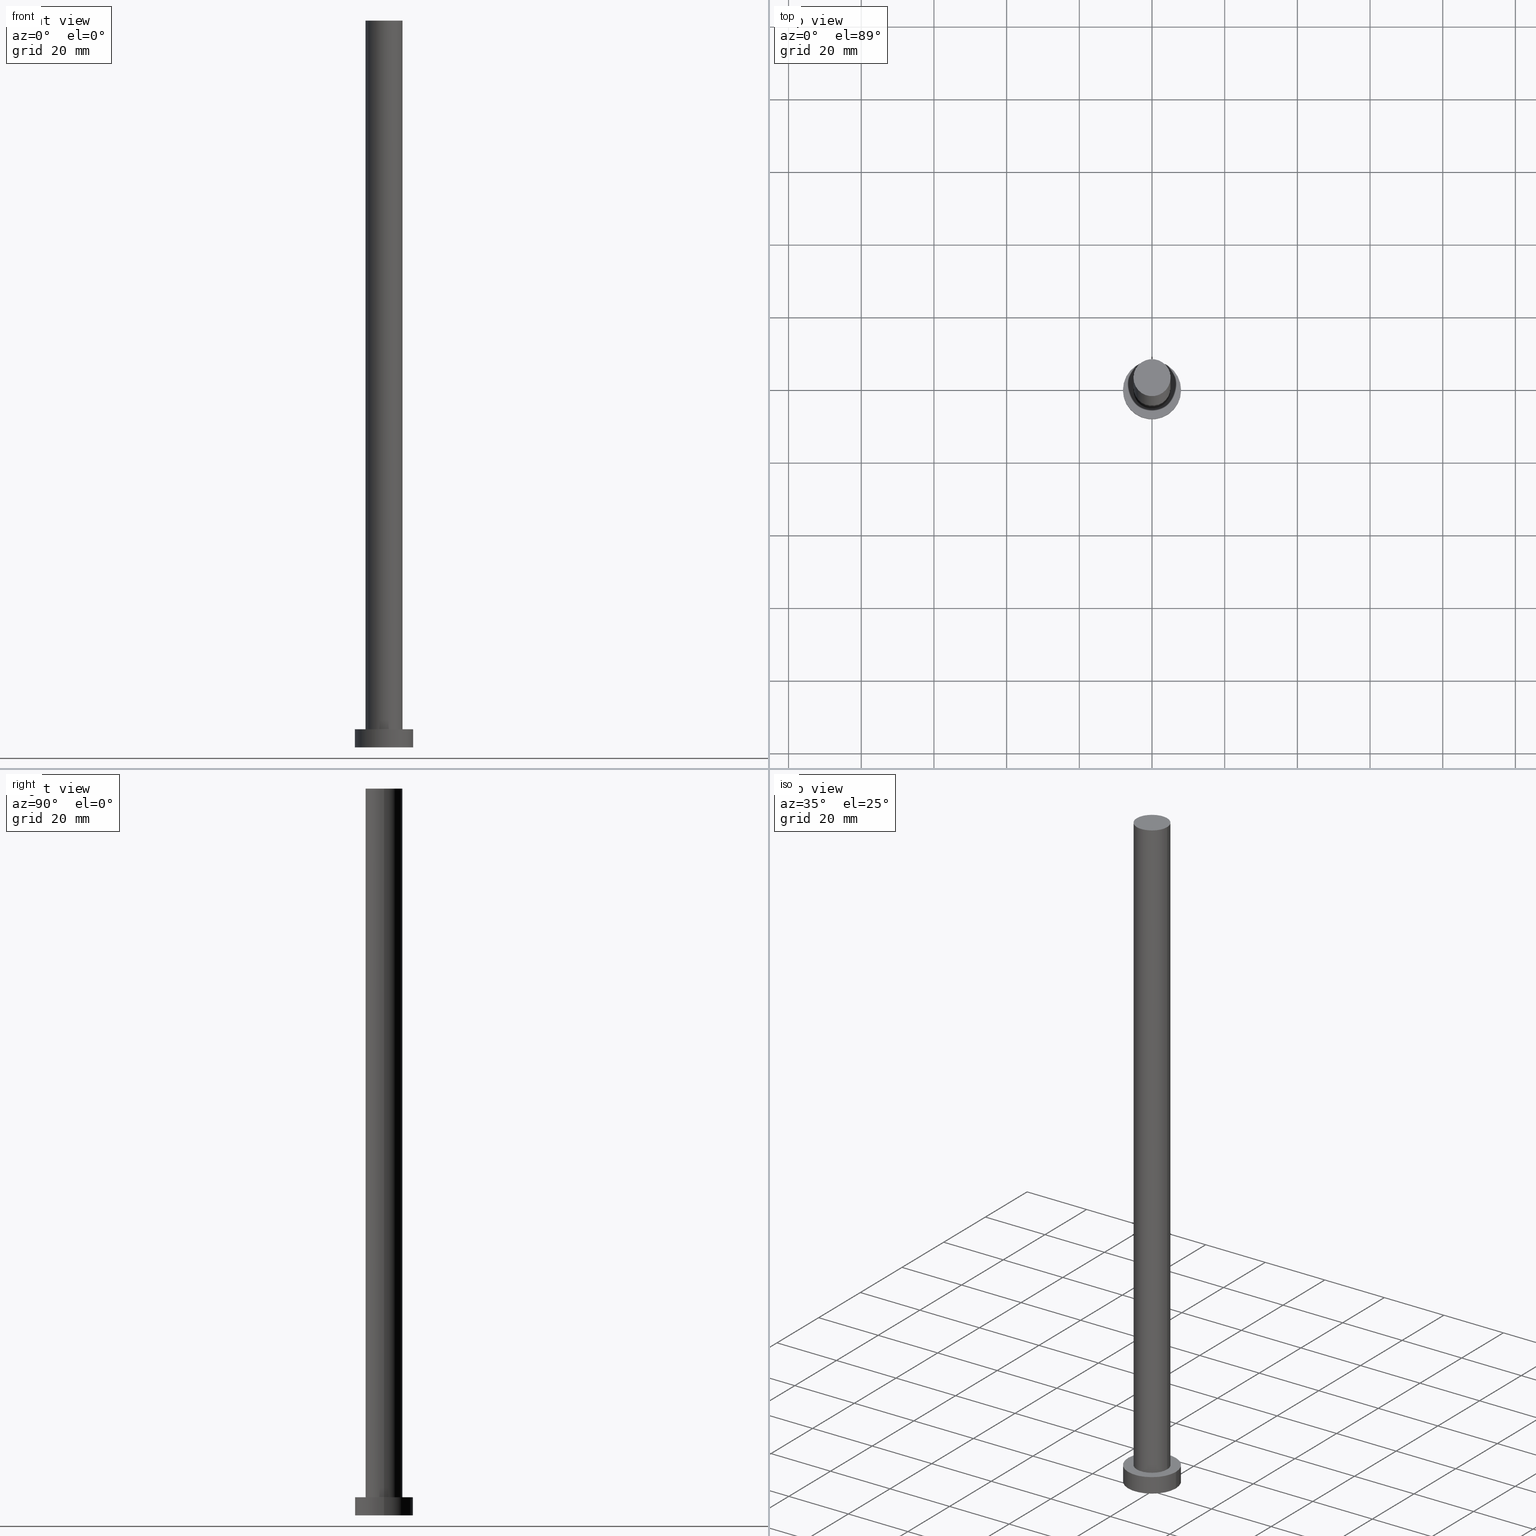
[diagram: canonical four-view strip — front | top / right | iso, engineering-drawing reading convention]
A machine part, canonical four-view strip (front | top / right | iso — engineering-drawing reading convention). The complete STEP part file that produces these views, byte-faithful:
ISO-10303-21;
HEADER;
FILE_DESCRIPTION (( 'STEP AP203' ),
    '1' );
FILE_NAME ('5f7f.STEP',
    '2023-02-13T09:57:11',
    ( '' ),
    ( '' ),
    'SwSTEP 2.0',
    'SolidWorks 2019',
    '' );
FILE_SCHEMA (( 'CONFIG_CONTROL_DESIGN' ));
ENDSEC;

DATA;
#1 = CARTESIAN_POINT ( 'NONE',  ( 5.100000000000001421, 6.245698675651502811E-16, 5.000000000000000000 ) ) ;
#2 = ORIENTED_EDGE ( 'NONE', *, *, #25, .F. ) ;
#3 = MANIFOLD_SOLID_BREP ( 'P�idat vysunut�m3', #13 ) ;
#4 = EDGE_CURVE ( 'NONE', #140, #40, #86, .T. ) ;
#5 = CIRCLE ( 'NONE', #173, 8.000000000000000000 ) ;
#6 = APPLICATION_CONTEXT ( 'configuration controlled 3d designs of mechanical parts and assemblies' ) ;
#7 = PRODUCT_DEFINITION_FORMATION_WITH_SPECIFIED_SOURCE ( 'LIBOVOLN�', '', #103, .NOT_KNOWN. ) ;
#8 = DESIGN_CONTEXT ( 'detailed design', #231, 'design' ) ;
#9 = CARTESIAN_POINT ( 'NONE',  ( 0.000000000000000000, 0.000000000000000000, 200.0000000000000000 ) ) ;
#10 = DIRECTION ( 'NONE',  ( 0.000000000000000000, 0.000000000000000000, 1.000000000000000000 ) ) ;
#11 = ORIENTED_EDGE ( 'NONE', *, *, #208, .T. ) ;
#12 = DIRECTION ( 'NONE',  ( 0.000000000000000000, 0.000000000000000000, 1.000000000000000000 ) ) ;
#13 = CLOSED_SHELL ( 'NONE', ( #106, #196, #129, #70, #255, #98, #96 ) ) ;
#14 = DATE_AND_TIME ( #49, #250 ) ;
#15 = AXIS2_PLACEMENT_3D ( 'NONE', #102, #10, #118 ) ;
#16 = APPROVAL_DATE_TIME ( #148, #69 ) ;
#17 = PERSON_AND_ORGANIZATION_ROLE ( 'creator' ) ;
#18 = DIRECTION ( 'NONE',  ( -1.000000000000000000, 0.000000000000000000, 0.000000000000000000 ) ) ;
#19 = CARTESIAN_POINT ( 'NONE',  ( 0.000000000000000000, 0.000000000000000000, 200.0000000000000000 ) ) ;
#20 = VERTEX_POINT ( 'NONE', #132 ) ;
#21 = COORDINATED_UNIVERSAL_TIME_OFFSET ( 1, 0, .AHEAD. ) ;
#22 = APPROVAL_PERSON_ORGANIZATION ( #111, #69, #79 ) ;
#23 = FACE_OUTER_BOUND ( 'NONE', #195, .T. ) ;
#24 = EDGE_LOOP ( 'NONE', ( #151, #243 ) ) ;
#25 = EDGE_CURVE ( 'NONE', #209, #223, #51, .T. ) ;
#26 = CALENDAR_DATE ( 2023, 13, 2 ) ;
#27 = ORIENTED_EDGE ( 'NONE', *, *, #25, .T. ) ;
#28 = CC_DESIGN_PERSON_AND_ORGANIZATION_ASSIGNMENT ( #139, #220, ( #103 ) ) ;
#29 = DIRECTION ( 'NONE',  ( 1.000000000000000000, 0.000000000000000000, 0.000000000000000000 ) ) ;
#30 = CARTESIAN_POINT ( 'NONE',  ( 0.000000000000000000, 0.000000000000000000, 200.0000000000000000 ) ) ;
#31 = PERSON_AND_ORGANIZATION_ROLE ( 'classification_officer' ) ;
#32 = AXIS2_PLACEMENT_3D ( 'NONE', #127, #191, #18 ) ;
#33 = DIRECTION ( 'NONE',  ( 0.000000000000000000, 0.000000000000000000, 1.000000000000000000 ) ) ;
#34 = PERSON_AND_ORGANIZATION ( #144, #90 ) ;
#35 = CARTESIAN_POINT ( 'NONE',  ( 0.000000000000000000, 0.000000000000000000, 0.000000000000000000 ) ) ;
#36 = LINE ( 'NONE', #217, #189 ) ;
#37 = DIRECTION ( 'NONE',  ( -1.000000000000000000, 0.000000000000000000, 0.000000000000000000 ) ) ;
#38 = ORIENTED_EDGE ( 'NONE', *, *, #226, .F. ) ;
#39 = AXIS2_PLACEMENT_3D ( 'NONE', #94, #115, #62 ) ;
#40 = VERTEX_POINT ( 'NONE', #246 ) ;
#41 = APPLICATION_PROTOCOL_DEFINITION ( 'international standard', 'config_control_design', 1994, #231 ) ;
#42 = DIRECTION ( 'NONE',  ( -0.000000000000000000, -0.000000000000000000, -1.000000000000000000 ) ) ;
#43 =( NAMED_UNIT ( * ) SI_UNIT ( $, .STERADIAN. ) SOLID_ANGLE_UNIT ( ) );
#44 = DIRECTION ( 'NONE',  ( 0.000000000000000000, 0.000000000000000000, 1.000000000000000000 ) ) ;
#45 = CC_DESIGN_APPROVAL ( #181, ( #7 ) ) ;
#46 = AXIS2_PLACEMENT_3D ( 'NONE', #194, #156, #55 ) ;
#47 = PLANE ( 'NONE',  #130 ) ;
#48 = EDGE_CURVE ( 'NONE', #237, #20, #138, .T. ) ;
#49 = CALENDAR_DATE ( 2023, 13, 2 ) ;
#50 = VERTEX_POINT ( 'NONE', #1 ) ;
#51 = LINE ( 'NONE', #214, #204 ) ;
#52 = DIRECTION ( 'NONE',  ( 0.000000000000000000, 0.000000000000000000, 1.000000000000000000 ) ) ;
#53 = LOCAL_TIME ( 10, 57, 11.00000000000000000, #135 ) ;
#54 = FACE_BOUND ( 'NONE', #163, .T. ) ;
#55 = DIRECTION ( 'NONE',  ( 1.000000000000000000, 0.000000000000000000, -0.000000000000000000 ) ) ;
#56 = DATE_TIME_ROLE ( 'classification_date' ) ;
#57 = ORIENTED_EDGE ( 'NONE', *, *, #4, .F. ) ;
#58 = CARTESIAN_POINT ( 'NONE',  ( -5.100000000000001421, 0.000000000000000000, 5.000000000000000000 ) ) ;
#59 = EDGE_LOOP ( 'NONE', ( #108, #198 ) ) ;
#60 = ORIENTED_EDGE ( 'NONE', *, *, #171, .T. ) ;
#61 = CIRCLE ( 'NONE', #91, 5.100000000000001421 ) ;
#62 = DIRECTION ( 'NONE',  ( 1.000000000000000000, 0.000000000000000000, 0.000000000000000000 ) ) ;
#63 = DIRECTION ( 'NONE',  ( -0.000000000000000000, -0.000000000000000000, -1.000000000000000000 ) ) ;
#64 = APPROVAL_DATE_TIME ( #188, #153 ) ;
#65 = CARTESIAN_POINT ( 'NONE',  ( 8.000000000000000000, 9.797174393178825657E-16, 5.000000000000000000 ) ) ;
#66 = DIRECTION ( 'NONE',  ( 0.000000000000000000, 0.000000000000000000, 1.000000000000000000 ) ) ;
#67 = APPROVAL_STATUS ( 'not_yet_approved' ) ;
#68 = DIRECTION ( 'NONE',  ( -1.000000000000000000, 0.000000000000000000, 0.000000000000000000 ) ) ;
#69 = APPROVAL ( #179, 'NEUR�EN�' ) ;
#70 = ADVANCED_FACE ( 'NONE', ( #54, #236 ), #75, .T. ) ;
#71 = PERSON_AND_ORGANIZATION ( #144, #90 ) ;
#72 = DIRECTION ( 'NONE',  ( 0.000000000000000000, 0.000000000000000000, 1.000000000000000000 ) ) ;
#73 = PERSON_AND_ORGANIZATION_ROLE ( 'design_supplier' ) ;
#74 = LOCAL_TIME ( 10, 57, 11.00000000000000000, #89 ) ;
#75 = PLANE ( 'NONE',  #46 ) ;
#76 = AXIS2_PLACEMENT_3D ( 'NONE', #200, #72, #124 ) ;
#77 = DIRECTION ( 'NONE',  ( 1.000000000000000000, 0.000000000000000000, -0.000000000000000000 ) ) ;
#78 = CARTESIAN_POINT ( 'NONE',  ( 0.000000000000000000, 0.000000000000000000, 200.0000000000000000 ) ) ;
#79 = APPROVAL_ROLE ( '' ) ;
#80 = DIRECTION ( 'NONE',  ( 1.000000000000000000, 0.000000000000000000, -0.000000000000000000 ) ) ;
#81 = DIRECTION ( 'NONE',  ( 1.000000000000000000, 0.000000000000000000, 0.000000000000000000 ) ) ;
#82 = UNCERTAINTY_MEASURE_WITH_UNIT (LENGTH_MEASURE( 1.000000000000000082E-05 ), #203, 'distance_accuracy_value', 'NONE');
#83 = CARTESIAN_POINT ( 'NONE',  ( 0.000000000000000000, 0.000000000000000000, 5.000000000000000000 ) ) ;
#84 = DIRECTION ( 'NONE',  ( 1.000000000000000000, 0.000000000000000000, 0.000000000000000000 ) ) ;
#85 = FACE_OUTER_BOUND ( 'NONE', #24, .T. ) ;
#86 = LINE ( 'NONE', #155, #252 ) ;
#87 = PERSON_AND_ORGANIZATION ( #144, #90 ) ;
#88 = EDGE_CURVE ( 'NONE', #20, #50, #36, .T. ) ;
#89 = COORDINATED_UNIVERSAL_TIME_OFFSET ( 1, 0, .AHEAD. ) ;
#90 = ORGANIZATION ( 'NEUR�EN�', 'NEUR�EN�', '' ) ;
#91 = AXIS2_PLACEMENT_3D ( 'NONE', #83, #12, #84 ) ;
#92 = EDGE_LOOP ( 'NONE', ( #2, #101, #251, #178 ) ) ;
#93 = CYLINDRICAL_SURFACE ( 'NONE', #185, 5.100000000000001421 ) ;
#94 = CARTESIAN_POINT ( 'NONE',  ( 0.000000000000000000, 0.000000000000000000, 0.000000000000000000 ) ) ;
#95 = ORIENTED_EDGE ( 'NONE', *, *, #169, .T. ) ;
#96 = ADVANCED_FACE ( 'NONE', ( #175 ), #192, .T. ) ;
#97 = APPROVAL_ROLE ( '' ) ;
#98 = ADVANCED_FACE ( 'NONE', ( #116 ), #157, .T. ) ;
#99 = DIRECTION ( 'NONE',  ( 0.000000000000000000, 0.000000000000000000, 1.000000000000000000 ) ) ;
#100 = CIRCLE ( 'NONE', #15, 8.000000000000000000 ) ;
#101 = ORIENTED_EDGE ( 'NONE', *, *, #239, .F. ) ;
#102 = CARTESIAN_POINT ( 'NONE',  ( 0.000000000000000000, 0.000000000000000000, 5.000000000000000000 ) ) ;
#103 = PRODUCT ( '5f7f', '5f7f', '', ( #238 ) ) ;
#104 = PERSON_AND_ORGANIZATION ( #144, #90 ) ;
#105 = ORIENTED_EDGE ( 'NONE', *, *, #226, .T. ) ;
#106 = ADVANCED_FACE ( 'NONE', ( #23 ), #93, .T. ) ;
#107 = DIRECTION ( 'NONE',  ( -0.000000000000000000, -0.000000000000000000, -1.000000000000000000 ) ) ;
#108 = ORIENTED_EDGE ( 'NONE', *, *, #48, .T. ) ;
#109 = ORIENTED_EDGE ( 'NONE', *, *, #177, .F. ) ;
#110 = ORIENTED_EDGE ( 'NONE', *, *, #88, .F. ) ;
#111 = PERSON_AND_ORGANIZATION ( #144, #90 ) ;
#112 = ORIENTED_EDGE ( 'NONE', *, *, #208, .F. ) ;
#113 = CC_DESIGN_PERSON_AND_ORGANIZATION_ASSIGNMENT ( #104, #183, ( #244 ) ) ;
#114 = CARTESIAN_POINT ( 'NONE',  ( -5.100000000000001421, 0.000000000000000000, 200.0000000000000000 ) ) ;
#115 = DIRECTION ( 'NONE',  ( 0.000000000000000000, 0.000000000000000000, 1.000000000000000000 ) ) ;
#116 = FACE_OUTER_BOUND ( 'NONE', #120, .T. ) ;
#117 = DIRECTION ( 'NONE',  ( 0.000000000000000000, 0.000000000000000000, 1.000000000000000000 ) ) ;
#118 = DIRECTION ( 'NONE',  ( 1.000000000000000000, 0.000000000000000000, 0.000000000000000000 ) ) ;
#119 = CC_DESIGN_PERSON_AND_ORGANIZATION_ASSIGNMENT ( #34, #17, ( #7 ) ) ;
#120 = EDGE_LOOP ( 'NONE', ( #110, #187, #105, #219 ) ) ;
#121 =( GEOMETRIC_REPRESENTATION_CONTEXT ( 3 ) GLOBAL_UNCERTAINTY_ASSIGNED_CONTEXT ( ( #82 ) ) GLOBAL_UNIT_ASSIGNED_CONTEXT ( ( #203, #221, #43 ) ) REPRESENTATION_CONTEXT ( 'NONE', 'WORKASPACE' ) );
#122 = PERSON_AND_ORGANIZATION ( #144, #90 ) ;
#123 = DIRECTION ( 'NONE',  ( -1.000000000000000000, 0.000000000000000000, 0.000000000000000000 ) ) ;
#124 = DIRECTION ( 'NONE',  ( 1.000000000000000000, 0.000000000000000000, 0.000000000000000000 ) ) ;
#125 = FACE_OUTER_BOUND ( 'NONE', #92, .T. ) ;
#126 = CARTESIAN_POINT ( 'NONE',  ( 0.000000000000000000, 0.000000000000000000, 0.000000000000000000 ) ) ;
#127 = CARTESIAN_POINT ( 'NONE',  ( 0.000000000000000000, 0.000000000000000000, 5.000000000000000000 ) ) ;
#128 = CIRCLE ( 'NONE', #152, 8.000000000000000000 ) ;
#129 = ADVANCED_FACE ( 'NONE', ( #125 ), #207, .T. ) ;
#130 = AXIS2_PLACEMENT_3D ( 'NONE', #126, #33, #80 ) ;
#131 = VERTEX_POINT ( 'NONE', #58 ) ;
#132 = CARTESIAN_POINT ( 'NONE',  ( 5.100000000000001421, 6.245698675651502811E-16, 200.0000000000000000 ) ) ;
#133 = LOCAL_TIME ( 10, 57, 11.00000000000000000, #21 ) ;
#134 = CC_DESIGN_DATE_AND_TIME_ASSIGNMENT ( #158, #56, ( #253 ) ) ;
#135 = COORDINATED_UNIVERSAL_TIME_OFFSET ( 1, 0, .AHEAD. ) ;
#136 = CARTESIAN_POINT ( 'NONE',  ( 0.000000000000000000, 0.000000000000000000, 200.0000000000000000 ) ) ;
#137 = PERSON_AND_ORGANIZATION ( #144, #90 ) ;
#138 = CIRCLE ( 'NONE', #162, 5.100000000000001421 ) ;
#139 = PERSON_AND_ORGANIZATION ( #144, #90 ) ;
#140 = VERTEX_POINT ( 'NONE', #159 ) ;
#141 = CARTESIAN_POINT ( 'NONE',  ( 0.000000000000000000, 0.000000000000000000, 0.000000000000000000 ) ) ;
#142 = CARTESIAN_POINT ( 'NONE',  ( -5.100000000000001421, 0.000000000000000000, 200.0000000000000000 ) ) ;
#143 = APPROVAL_STATUS ( 'not_yet_approved' ) ;
#144 = PERSON ( 'NEUR�EN�', 'NEUR�EN�', 'NEUR�EN�', ('NEUR�EN�'), ('NEUR�EN�'), ('NEUR�EN�') ) ;
#145 = SECURITY_CLASSIFICATION_LEVEL ( 'unclassified' ) ;
#146 = AXIS2_PLACEMENT_3D ( 'NONE', #136, #216, #37 ) ;
#147 = VECTOR ( 'NONE', #42, 1000.000000000000000 ) ;
#148 = DATE_AND_TIME ( #242, #225 ) ;
#149 = DATE_TIME_ROLE ( 'creation_date' ) ;
#150 = APPROVAL_ROLE ( '' ) ;
#151 = ORIENTED_EDGE ( 'NONE', *, *, #154, .F. ) ;
#152 = AXIS2_PLACEMENT_3D ( 'NONE', #141, #117, #81 ) ;
#153 = APPROVAL ( #143, 'NEUR�EN�' ) ;
#154 = EDGE_CURVE ( 'NONE', #40, #223, #5, .T. ) ;
#155 = CARTESIAN_POINT ( 'NONE',  ( -8.000000000000000000, 0.000000000000000000, 5.000000000000000000 ) ) ;
#156 = DIRECTION ( 'NONE',  ( 0.000000000000000000, 0.000000000000000000, 1.000000000000000000 ) ) ;
#157 = CYLINDRICAL_SURFACE ( 'NONE', #146, 5.100000000000001421 ) ;
#158 = DATE_AND_TIME ( #26, #133 ) ;
#159 = CARTESIAN_POINT ( 'NONE',  ( -8.000000000000000000, 0.000000000000000000, 5.000000000000000000 ) ) ;
#160 = DIRECTION ( 'NONE',  ( 1.000000000000000000, 0.000000000000000000, 0.000000000000000000 ) ) ;
#161 = ORIENTED_EDGE ( 'NONE', *, *, #239, .T. ) ;
#162 = AXIS2_PLACEMENT_3D ( 'NONE', #30, #99, #160 ) ;
#163 = EDGE_LOOP ( 'NONE', ( #193, #166 ) ) ;
#164 = COORDINATED_UNIVERSAL_TIME_OFFSET ( 1, 0, .AHEAD. ) ;
#165 = CARTESIAN_POINT ( 'NONE',  ( 0.000000000000000000, 0.000000000000000000, 5.000000000000000000 ) ) ;
#166 = ORIENTED_EDGE ( 'NONE', *, *, #169, .F. ) ;
#167 = FACE_OUTER_BOUND ( 'NONE', #241, .T. ) ;
#168 = CIRCLE ( 'NONE', #184, 5.100000000000001421 ) ;
#169 = EDGE_CURVE ( 'NONE', #50, #131, #61, .T. ) ;
#170 = CYLINDRICAL_SURFACE ( 'NONE', #211, 8.000000000000000000 ) ;
#171 = EDGE_CURVE ( 'NONE', #223, #40, #128, .T. ) ;
#172 = CALENDAR_DATE ( 2023, 13, 2 ) ;
#173 = AXIS2_PLACEMENT_3D ( 'NONE', #35, #52, #197 ) ;
#174 = PRODUCT_DEFINITION_SHAPE ( 'NONE', 'NONE',  #244 ) ;
#175 = FACE_OUTER_BOUND ( 'NONE', #59, .T. ) ;
#176 = CIRCLE ( 'NONE', #76, 8.000000000000000000 ) ;
#177 = EDGE_CURVE ( 'NONE', #20, #237, #168, .T. ) ;
#178 = ORIENTED_EDGE ( 'NONE', *, *, #154, .T. ) ;
#179 = APPROVAL_STATUS ( 'not_yet_approved' ) ;
#180 = CIRCLE ( 'NONE', #229, 5.100000000000001421 ) ;
#181 = APPROVAL ( #67, 'NEUR�EN�' ) ;
#182 = APPLICATION_PROTOCOL_DEFINITION ( 'international standard', 'config_control_design', 1994, #6 ) ;
#183 = PERSON_AND_ORGANIZATION_ROLE ( 'creator' ) ;
#184 = AXIS2_PLACEMENT_3D ( 'NONE', #9, #66, #222 ) ;
#185 = AXIS2_PLACEMENT_3D ( 'NONE', #78, #206, #68 ) ;
#186 = CC_DESIGN_PERSON_AND_ORGANIZATION_ASSIGNMENT ( #87, #73, ( #7 ) ) ;
#187 = ORIENTED_EDGE ( 'NONE', *, *, #48, .F. ) ;
#188 = DATE_AND_TIME ( #172, #53 ) ;
#189 = VECTOR ( 'NONE', #107, 1000.000000000000000 ) ;
#190 = EDGE_CURVE ( 'NONE', #131, #50, #180, .T. ) ;
#191 = DIRECTION ( 'NONE',  ( -0.000000000000000000, -0.000000000000000000, -1.000000000000000000 ) ) ;
#192 = PLANE ( 'NONE',  #227 ) ;
#193 = ORIENTED_EDGE ( 'NONE', *, *, #190, .F. ) ;
#194 = CARTESIAN_POINT ( 'NONE',  ( 0.000000000000000000, 0.000000000000000000, 5.000000000000000000 ) ) ;
#195 = EDGE_LOOP ( 'NONE', ( #109, #213, #95, #38 ) ) ;
#196 = ADVANCED_FACE ( 'NONE', ( #167 ), #170, .T. ) ;
#197 = DIRECTION ( 'NONE',  ( 1.000000000000000000, 0.000000000000000000, 0.000000000000000000 ) ) ;
#198 = ORIENTED_EDGE ( 'NONE', *, *, #177, .T. ) ;
#199 = CC_DESIGN_PERSON_AND_ORGANIZATION_ASSIGNMENT ( #122, #31, ( #253 ) ) ;
#200 = CARTESIAN_POINT ( 'NONE',  ( 0.000000000000000000, 0.000000000000000000, 5.000000000000000000 ) ) ;
#201 = CC_DESIGN_APPROVAL ( #153, ( #253 ) ) ;
#202 = DIRECTION ( 'NONE',  ( 0.000000000000000000, 0.000000000000000000, 1.000000000000000000 ) ) ;
#203 =( LENGTH_UNIT ( ) NAMED_UNIT ( * ) SI_UNIT ( .MILLI., .METRE. ) );
#204 = VECTOR ( 'NONE', #63, 1000.000000000000000 ) ;
#205 = APPROVAL_DATE_TIME ( #14, #181 ) ;
#206 = DIRECTION ( 'NONE',  ( -0.000000000000000000, -0.000000000000000000, -1.000000000000000000 ) ) ;
#207 = CYLINDRICAL_SURFACE ( 'NONE', #32, 8.000000000000000000 ) ;
#208 = EDGE_CURVE ( 'NONE', #209, #140, #100, .T. ) ;
#209 = VERTEX_POINT ( 'NONE', #65 ) ;
#210 = CALENDAR_DATE ( 2023, 13, 2 ) ;
#211 = AXIS2_PLACEMENT_3D ( 'NONE', #212, #249, #123 ) ;
#212 = CARTESIAN_POINT ( 'NONE',  ( 0.000000000000000000, 0.000000000000000000, 5.000000000000000000 ) ) ;
#213 = ORIENTED_EDGE ( 'NONE', *, *, #88, .T. ) ;
#214 = CARTESIAN_POINT ( 'NONE',  ( 8.000000000000000000, 9.797174393178825657E-16, 5.000000000000000000 ) ) ;
#215 = CC_DESIGN_APPROVAL ( #69, ( #244 ) ) ;
#216 = DIRECTION ( 'NONE',  ( -0.000000000000000000, -0.000000000000000000, -1.000000000000000000 ) ) ;
#217 = CARTESIAN_POINT ( 'NONE',  ( 5.100000000000001421, 6.245698675651502811E-16, 200.0000000000000000 ) ) ;
#218 = APPROVAL_PERSON_ORGANIZATION ( #71, #181, #150 ) ;
#219 = ORIENTED_EDGE ( 'NONE', *, *, #190, .T. ) ;
#220 = PERSON_AND_ORGANIZATION_ROLE ( 'design_owner' ) ;
#221 =( NAMED_UNIT ( * ) PLANE_ANGLE_UNIT ( ) SI_UNIT ( $, .RADIAN. ) );
#222 = DIRECTION ( 'NONE',  ( 1.000000000000000000, 0.000000000000000000, 0.000000000000000000 ) ) ;
#223 = VERTEX_POINT ( 'NONE', #247 ) ;
#224 = EDGE_LOOP ( 'NONE', ( #161, #11 ) ) ;
#225 = LOCAL_TIME ( 10, 57, 11.00000000000000000, #164 ) ;
#226 = EDGE_CURVE ( 'NONE', #237, #131, #228, .T. ) ;
#227 = AXIS2_PLACEMENT_3D ( 'NONE', #19, #44, #77 ) ;
#228 = LINE ( 'NONE', #142, #147 ) ;
#229 = AXIS2_PLACEMENT_3D ( 'NONE', #165, #202, #29 ) ;
#230 = DATE_AND_TIME ( #210, #74 ) ;
#231 = APPLICATION_CONTEXT ( 'configuration controlled 3d designs of mechanical parts and assemblies' ) ;
#232 = CC_DESIGN_DATE_AND_TIME_ASSIGNMENT ( #230, #149, ( #244 ) ) ;
#233 = COORDINATED_UNIVERSAL_TIME_OFFSET ( 1, 0, .AHEAD. ) ;
#234 = DIRECTION ( 'NONE',  ( -0.000000000000000000, -0.000000000000000000, -1.000000000000000000 ) ) ;
#235 = CC_DESIGN_SECURITY_CLASSIFICATION ( #253, ( #7 ) ) ;
#236 = FACE_OUTER_BOUND ( 'NONE', #224, .T. ) ;
#237 = VERTEX_POINT ( 'NONE', #114 ) ;
#238 = MECHANICAL_CONTEXT ( 'NONE', #6, 'mechanical' ) ;
#239 = EDGE_CURVE ( 'NONE', #140, #209, #176, .T. ) ;
#240 = APPROVAL_PERSON_ORGANIZATION ( #137, #153, #97 ) ;
#241 = EDGE_LOOP ( 'NONE', ( #112, #27, #60, #57 ) ) ;
#242 = CALENDAR_DATE ( 2023, 13, 2 ) ;
#243 = ORIENTED_EDGE ( 'NONE', *, *, #171, .F. ) ;
#244 = PRODUCT_DEFINITION ( 'NEZN�M�', '', #7, #8 ) ;
#245 = ADVANCED_BREP_SHAPE_REPRESENTATION ( '5f7f', ( #3, #39 ), #121 ) ;
#246 = CARTESIAN_POINT ( 'NONE',  ( -8.000000000000000000, 0.000000000000000000, 0.000000000000000000 ) ) ;
#247 = CARTESIAN_POINT ( 'NONE',  ( 8.000000000000000000, 9.797174393178825657E-16, 0.000000000000000000 ) ) ;
#248 = SHAPE_DEFINITION_REPRESENTATION ( #174, #245 ) ;
#249 = DIRECTION ( 'NONE',  ( -0.000000000000000000, -0.000000000000000000, -1.000000000000000000 ) ) ;
#250 = LOCAL_TIME ( 10, 57, 11.00000000000000000, #233 ) ;
#251 = ORIENTED_EDGE ( 'NONE', *, *, #4, .T. ) ;
#252 = VECTOR ( 'NONE', #234, 1000.000000000000000 ) ;
#253 = SECURITY_CLASSIFICATION ( '', '', #145 ) ;
#254 = PRODUCT_RELATED_PRODUCT_CATEGORY ( 'detail', '', ( #103 ) ) ;
#255 = ADVANCED_FACE ( 'NONE', ( #85 ), #47, .F. ) ;
ENDSEC;
END-ISO-10303-21;
